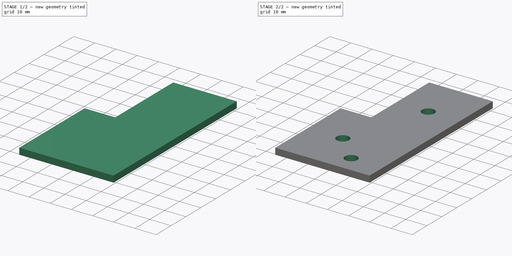
[diagram: build sequence overview — one tinted view per stage of 2, left to right]
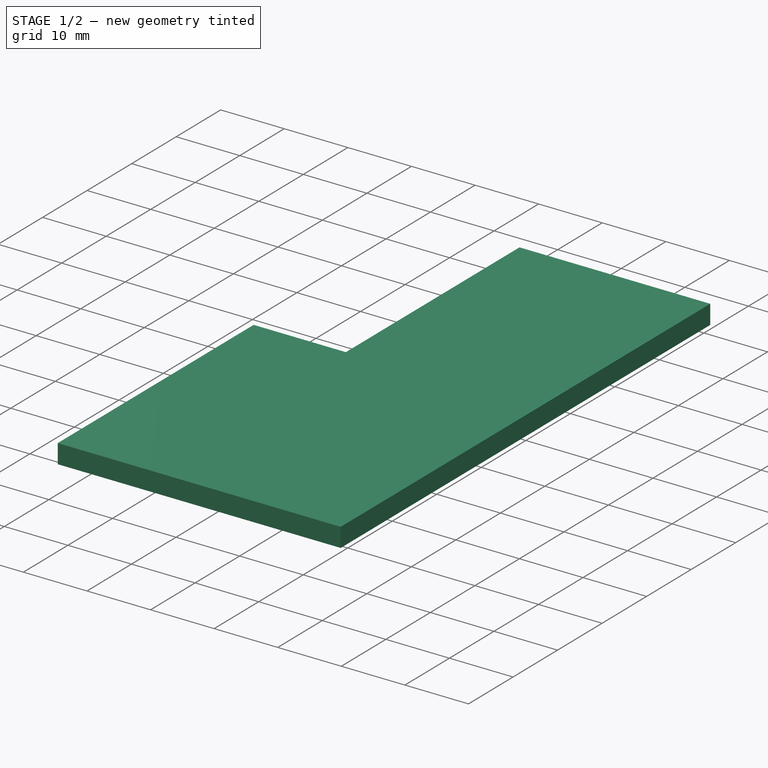
[diagram: stage 1 of 2 — iso view after this stage's code; geometry added in this stage tinted green]
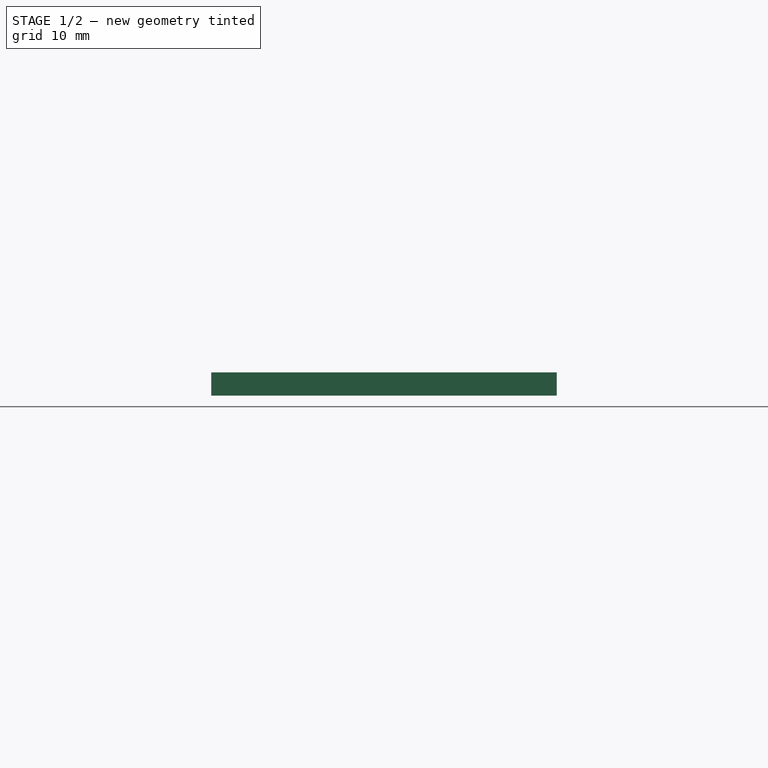
[diagram: stage 1 of 2 — front view after this stage's code; geometry added in this stage tinted green]
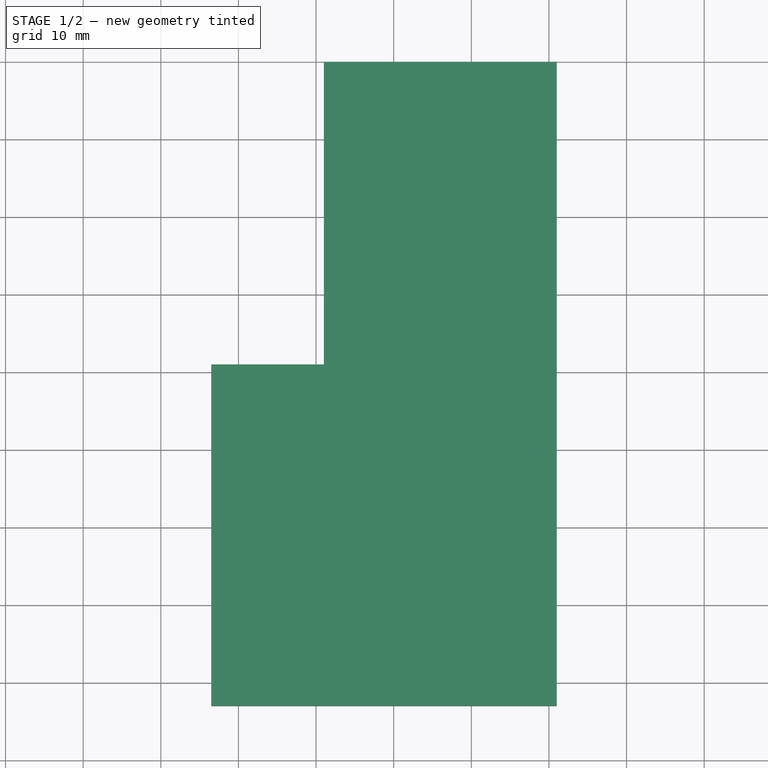
[diagram: stage 1 of 2 — top view after this stage's code; geometry added in this stage tinted green]
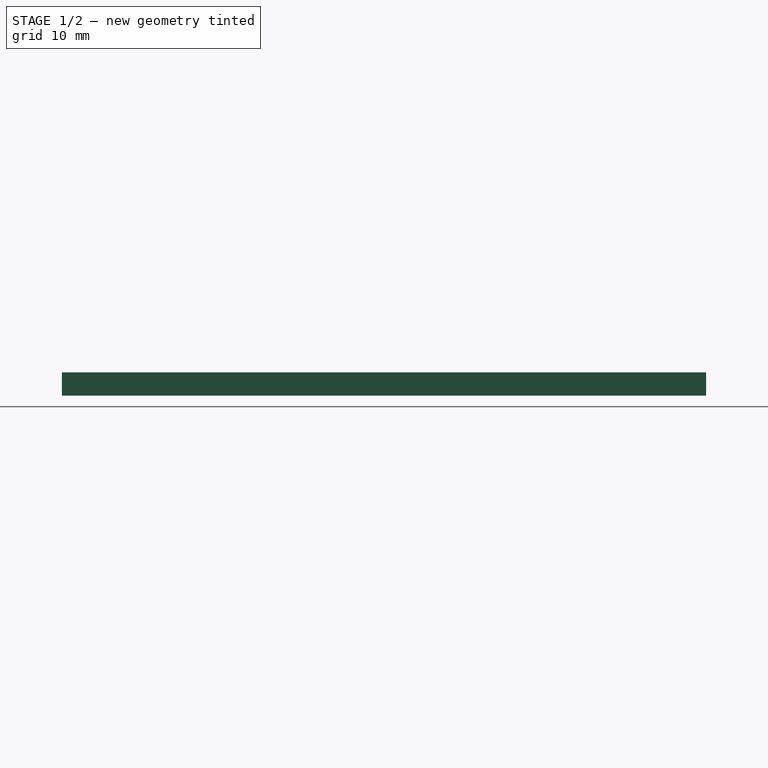
[diagram: stage 1 of 2 — right view after this stage's code; geometry added in this stage tinted green]
FCSTD DOCUMENT  (FreeCAD 0.21R32110 (Git))
Label: Pitch_Pulley_Base
License: All rights reserved
LicenseURL: http://en.wikipedia.org/wiki/All_rights_reserved
objects: Sketcher::SketchObject×2, PartDesign::Pad×1, PartDesign::Hole×1, PartDesign::Body×1
note: 7 computed .brp shape members not serialized (recipe doc carries the construction recipe); baked Part::Feature solids carry a one-line shape summary decoded from their .brp

FEATURE [Sketcher::SketchObject] Sketch058
  AttachmentOffset = pos=(0,0,-58.5) rot=(0,0,1;0rad)
  FullyConstrained = true
  MapMode = 5
  Placement = pos=(0,0,-58.5) rot=(0,0,1;0rad)
  Support = -> [XY_Plane019]
  sketch-geometry (6):
    g0: LineSegment StartX=111 StartY=40 StartZ=0 EndX=81 EndY=40 EndZ=0
    g1: LineSegment StartX=81 StartY=40 StartZ=0 EndX=81 EndY=1 EndZ=0
    g2: LineSegment StartX=81 StartY=1 StartZ=0 EndX=66.5 EndY=1 EndZ=0
    g3: LineSegment StartX=66.5 StartY=1 StartZ=0 EndX=66.5 EndY=-43 EndZ=0
    g4: LineSegment StartX=66.5 StartY=-43 StartZ=0 EndX=111 EndY=-43 EndZ=0
    g5: LineSegment StartX=111 StartY=-43 StartZ=0 EndX=111 EndY=40 EndZ=0
  constraints (18):
    c: Coincident(g0,g1)
    c: Vertical(g1)
    c: Coincident(g1,g2)
    c: Horizontal(g2)
    c: Coincident(g2,g3)
    c: Vertical(g3)
    c: Coincident(g3,g4)
    c: Horizontal(g4)
    c: Coincident(g4,g5)
    c: Coincident(g5,g0)
    c: Vertical(g5)
    c: Horizontal(g0)
    c: DistanceY(g0) = 40
    c: DistanceX(g0) = 111
    c: Distance(g5) = 83
    c: Distance(g4) = 44.5
    c: DistanceY(g3,g3) = 44
    c: Distance(g0) = 30
FEATURE [PartDesign::Pad] Pad034
  Direction = (0,0,1)
  Length = 3
  Length2 = 10
  Profile = -> Sketch058
  ReferenceAxis = -> Sketch058 [N_Axis]
  Type = 0
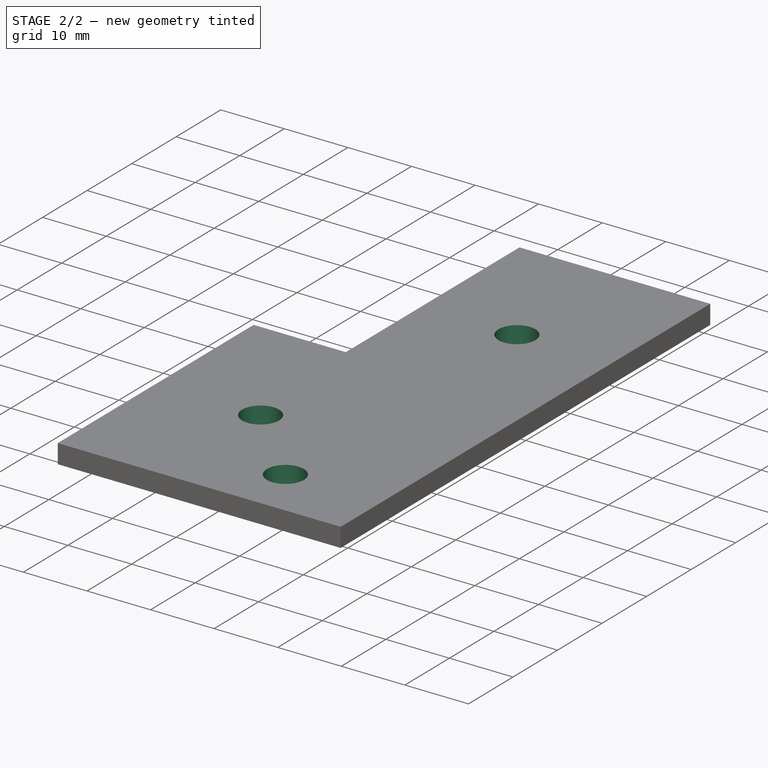
[diagram: stage 2 of 2 — iso view after this stage's code; geometry added in this stage tinted green]
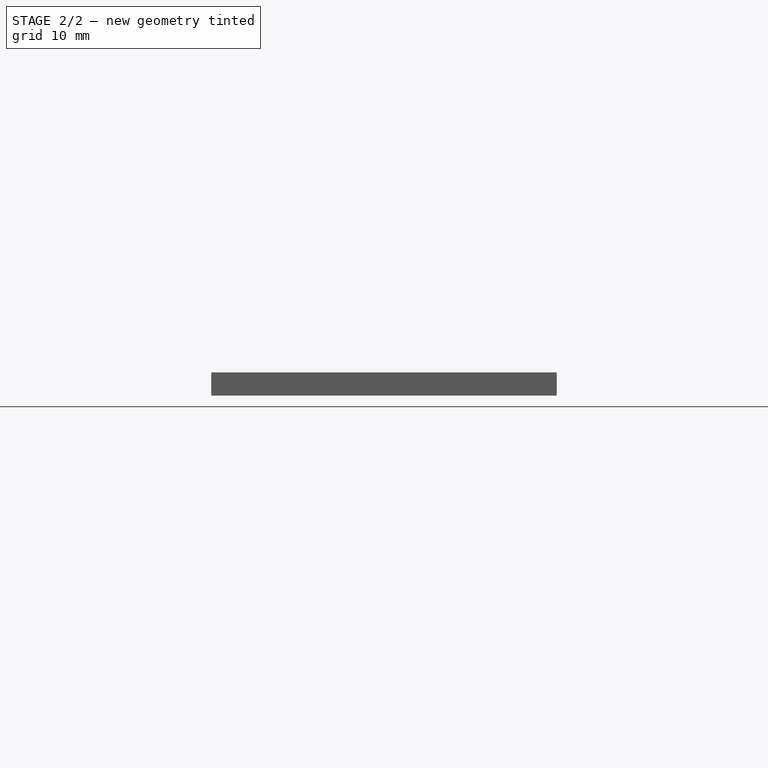
[diagram: stage 2 of 2 — front view after this stage's code; geometry added in this stage tinted green]
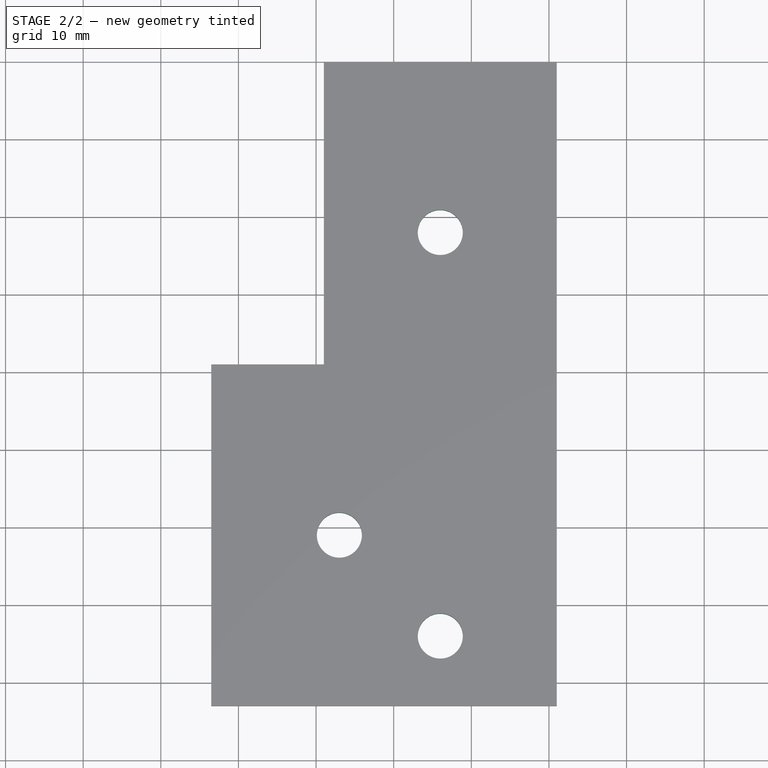
[diagram: stage 2 of 2 — top view after this stage's code; geometry added in this stage tinted green]
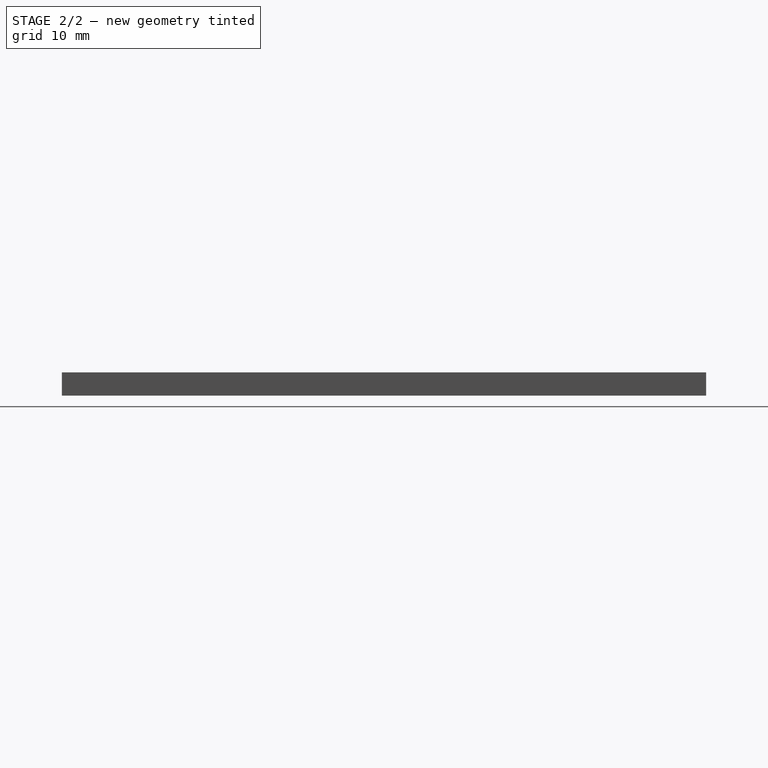
[diagram: stage 2 of 2 — right view after this stage's code; geometry added in this stage tinted green]
FEATURE [Sketcher::SketchObject] Sketch060
  AttachmentOffset = pos=(1,0,-54.5) rot=(0,0,1;0rad)
  FullyConstrained = true
  MapMode = 5
  Placement = pos=(1,0,-54.5) rot=(0,0,1;0rad)
  Support = -> [XY_Plane019]
  sketch-geometry (3):
    g0: Circle CenterX=95 CenterY=18 CenterZ=0 NormalX=0 NormalY=0 NormalZ=1 AngleXU=0 Radius=2.7
    g1: Circle CenterX=82 CenterY=-21 CenterZ=0 NormalX=0 NormalY=0 NormalZ=1 AngleXU=0 Radius=2.7
    g2: Circle CenterX=95 CenterY=-34 CenterZ=0 NormalX=0 NormalY=0 NormalZ=1 AngleXU=0 Radius=2.7
  constraints (9):
    c: Equal(g0,g1)
    c: Equal(g1,g2)
    c: Diameter(g0) = 5.4
    c: Vertical(g0,g2)
    c: DistanceX(g0) = 95
    c: DistanceY(g0) = 18
    c: DistanceX(g1) = 82
    c: DistanceY(g1) = -21
    c: Distance(g0,g2) = 52
FEATURE [PartDesign::Hole] Hole001
  BaseFeature = -> Pad034
  CustomThreadClearance = 0
  Depth = 192.327
  DepthType = 1
  Diameter = 5.8
  DrillForDepth = false
  DrillPoint = 1
  DrillPointAngle = 118
  HoleCutCountersinkAngle = 90
  HoleCutCustomValues = false
  HoleCutDepth = 0
  HoleCutDiameter = 8.7
  HoleCutType = 0
  ModelThread = false
  Profile = -> Sketch060
  Tapered = false
  TaperedAngle = 90
  ThreadClass = 0
  ThreadDepth = 192.327
  ThreadDepthType = 0
  ThreadDirection = 0
  ThreadFit = 2
  ThreadSize = 13
  ThreadType = 1
  Threaded = false
  UseCustomThreadClearance = false
FEATURE [PartDesign::Body] Body014  label="Pitch Encoder Pulley Mount"
  Group = -> [Sketch058,Pad034,Sketch060,Hole001]
  Origin = -> Origin019
  Placement = pos=(18.5,0,0) rot=(0,0,1;0rad)
  Tip = -> Hole001
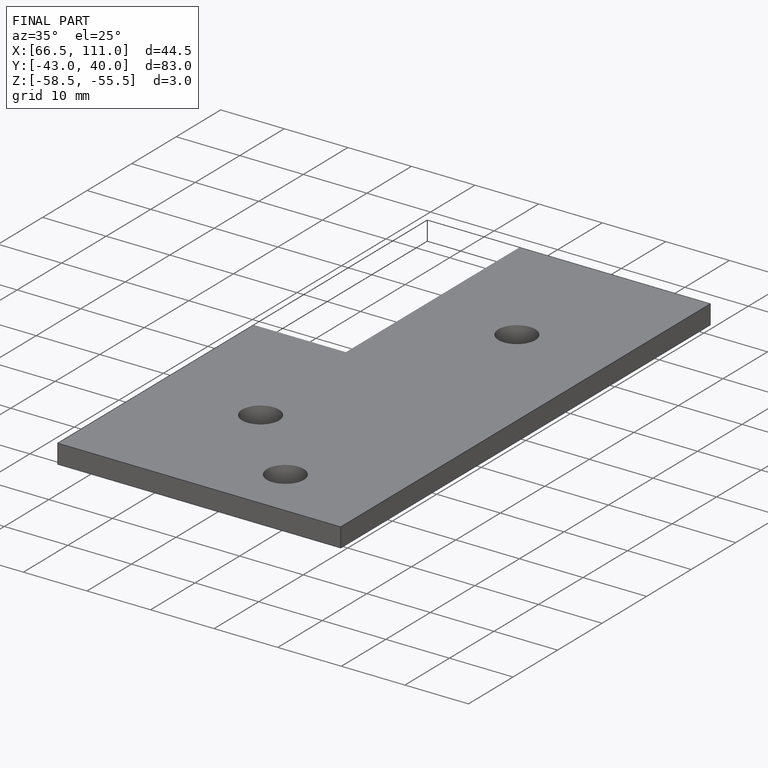
[diagram: finished part — iso view with bounding-box wireframe]
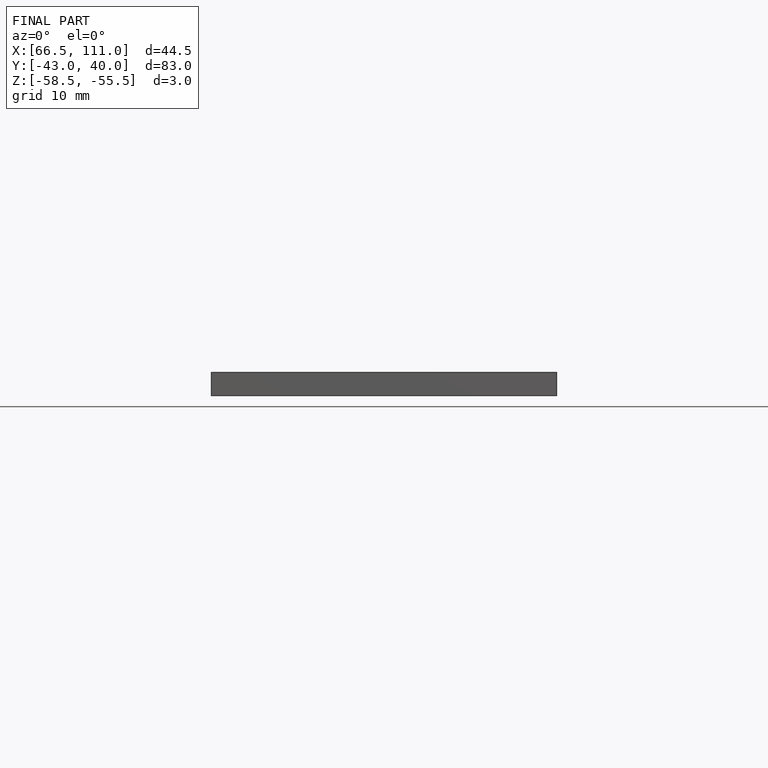
[diagram: finished part — front view with bounding-box wireframe]
